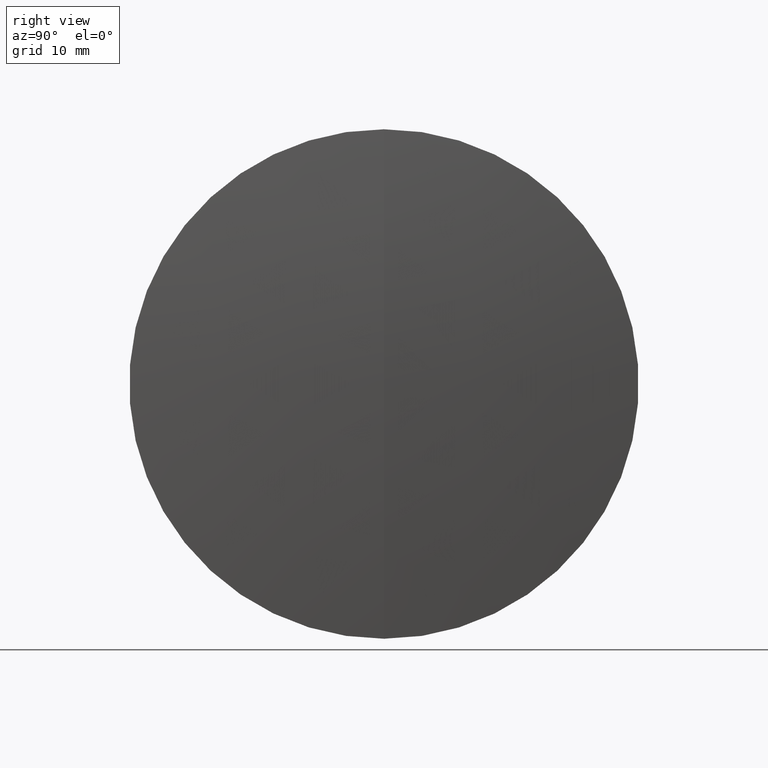
[diagram: clean part render]
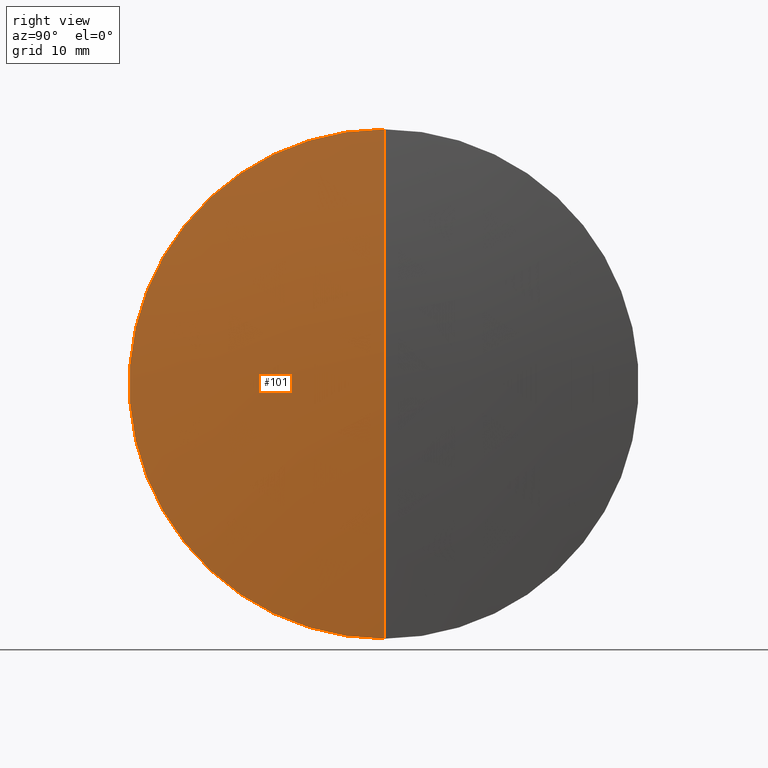
[diagram: same view with one face highlighted and labeled with its STEP entity id]
A machine part, right view. The second image highlights one B-rep face of the part: STEP entity #101.
In plain terms, the highlighted spherical surface has radius 282.8 mm.
Its self-contained STEP definition (entity closure, byte-faithful):
#6 = DIRECTION ( 'NONE',  ( -1.000000000000000000, -0.0000000000000000000, -0.0000000000000000000 ) ) ;
#10 = CIRCLE ( 'NONE', #260, 29.99999999999997900 ) ;
#14 = AXIS2_PLACEMENT_3D ( 'NONE', #110, #120, #284 ) ;
#20 = DIRECTION ( 'NONE',  ( 0.0000000000000000000, 0.0000000000000000000, 1.000000000000000000 ) ) ;
#27 = CARTESIAN_POINT ( 'NONE',  ( 312.2418929441652700, 3.673940397442056800E-015, -29.99999999999997900 ) ) ;
#29 = CARTESIAN_POINT ( 'NONE',  ( 31.03762555122546700, 0.0000000000000000000, 0.0000000000000000000 ) ) ;
#37 = CIRCLE ( 'NONE', #175, 282.7999999999999500 ) ;
#38 = ORIENTED_EDGE ( 'NONE', *, *, #157, .F. ) ;
#44 = CARTESIAN_POINT ( 'NONE',  ( 31.03762555122546700, 0.0000000000000000000, 0.0000000000000000000 ) ) ;
#92 = DIRECTION ( 'NONE',  ( -0.0000000000000000000, 1.000000000000000000, 1.224646799147353200E-016 ) ) ;
#95 = AXIS2_PLACEMENT_3D ( 'NONE', #29, #160, #20 ) ;
#99 = VERTEX_POINT ( 'NONE', #236 ) ;
#101 = ADVANCED_FACE ( 'NONE', ( #119 ), #231, .T. ) ;
#110 = CARTESIAN_POINT ( 'NONE',  ( 31.03762555122546700, 0.0000000000000000000, 0.0000000000000000000 ) ) ;
#114 = VERTEX_POINT ( 'NONE', #273 ) ;
#119 = FACE_OUTER_BOUND ( 'NONE', #272, .T. ) ;
#120 = DIRECTION ( 'NONE',  ( 0.0000000000000000000, -1.000000000000000000, 0.0000000000000000000 ) ) ;
#144 = CARTESIAN_POINT ( 'NONE',  ( 312.2418929441652700, 0.0000000000000000000, 0.0000000000000000000 ) ) ;
#152 = ORIENTED_EDGE ( 'NONE', *, *, #252, .F. ) ;
#157 = EDGE_CURVE ( 'NONE', #114, #293, #37, .T. ) ;
#160 = DIRECTION ( 'NONE',  ( 0.0000000000000000000, 1.000000000000000000, 0.0000000000000000000 ) ) ;
#175 = AXIS2_PLACEMENT_3D ( 'NONE', #44, #92, #346 ) ;
#231 = SPHERICAL_SURFACE ( 'NONE', #95, 282.7999999999999500 ) ;
#236 = CARTESIAN_POINT ( 'NONE',  ( 312.2418929441652700, 0.0000000000000000000, 29.99999999999997900 ) ) ;
#245 = ORIENTED_EDGE ( 'NONE', *, *, #292, .T. ) ;
#252 = EDGE_CURVE ( 'NONE', #293, #99, #10, .T. ) ;
#260 = AXIS2_PLACEMENT_3D ( 'NONE', #144, #6, #311 ) ;
#272 = EDGE_LOOP ( 'NONE', ( #38, #245, #152 ) ) ;
#273 = CARTESIAN_POINT ( 'NONE',  ( 313.8376255512254100, 0.0000000000000000000, 1.731650573994357100E-014 ) ) ;
#284 = DIRECTION ( 'NONE',  ( 0.0000000000000000000, 0.0000000000000000000, -1.000000000000000000 ) ) ;
#292 = EDGE_CURVE ( 'NONE', #114, #99, #294, .T. ) ;
#293 = VERTEX_POINT ( 'NONE', #27 ) ;
#294 = CIRCLE ( 'NONE', #14, 282.7999999999999500 ) ;
#311 = DIRECTION ( 'NONE',  ( 0.0000000000000000000, 0.0000000000000000000, 1.000000000000000000 ) ) ;
#346 = DIRECTION ( 'NONE',  ( 0.0000000000000000000, -1.224646799147353200E-016, 1.000000000000000000 ) ) ;